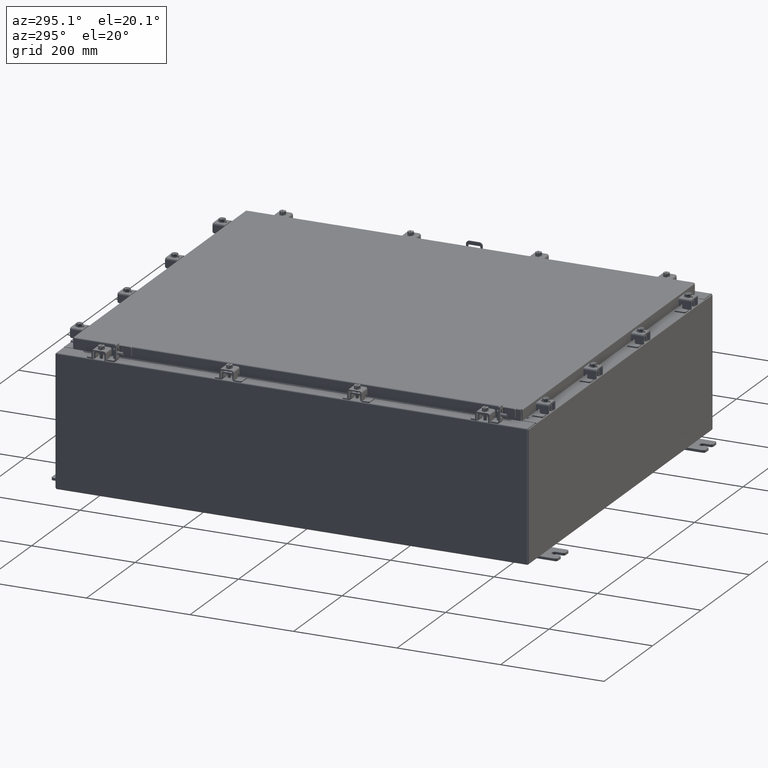
[diagram: clean part render]
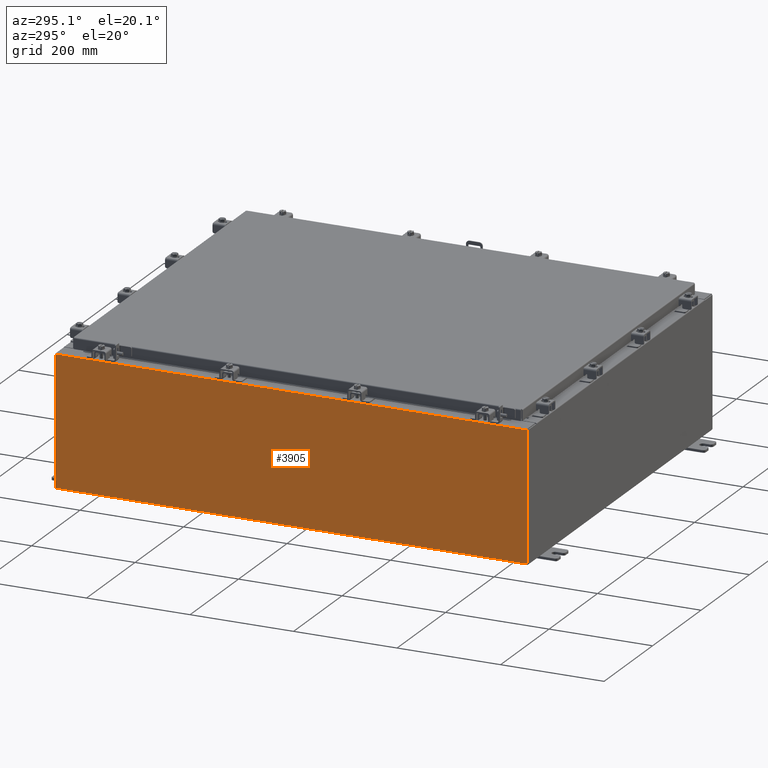
[diagram: same view with one face highlighted and labeled with its STEP entity id]
A machine part, auxiliary view. The second image highlights one B-rep face of the part: STEP entity #3905.
In plain terms, the highlighted planar face has unit normal (1, 0, 0).
Its self-contained STEP definition (entity closure, byte-faithful):
#37 = VERTEX_POINT ( 'NONE', #19309 ) ;
#464 = ORIENTED_EDGE ( 'NONE', *, *, #6773, .T. ) ;
#509 = LINE ( 'NONE', #2527, #13833 ) ;
#1402 = VECTOR ( 'NONE', #5869, 39.37007874015748100 ) ;
#2527 = CARTESIAN_POINT ( 'NONE',  ( -15.00000000000000400, 17.92530000000000000, 0.01299999999999984700 ) ) ;
#3388 = VECTOR ( 'NONE', #16545, 39.37007874015748100 ) ;
#3869 = VERTEX_POINT ( 'NONE', #16182 ) ;
#3905 = ADVANCED_FACE ( 'NONE', ( #12391 ), #12611, .F. ) ;
#4137 = CARTESIAN_POINT ( 'NONE',  ( -15.00000000000003700, -17.92530000000000000, 9.837599999999998300 ) ) ;
#4248 = CARTESIAN_POINT ( 'NONE',  ( -15.00000000000003700, -17.92530000000000000, 9.837599999999998300 ) ) ;
#4276 = DIRECTION ( 'NONE',  ( -0.0000000000000000000, 1.000000000000000000, -0.0000000000000000000 ) ) ;
#5314 = CARTESIAN_POINT ( 'NONE',  ( -15.00000000000000400, 17.92530000000000000, 0.01299999999999984300 ) ) ;
#5415 = ORIENTED_EDGE ( 'NONE', *, *, #11498, .F. ) ;
#5869 = DIRECTION ( 'NONE',  ( 0.0000000000000000000, 1.000000000000000000, 0.0000000000000000000 ) ) ;
#6577 = LINE ( 'NONE', #11072, #15270 ) ;
#6773 = EDGE_CURVE ( 'NONE', #37, #8850, #6577, .T. ) ;
#7697 = ORIENTED_EDGE ( 'NONE', *, *, #22334, .T. ) ;
#8456 = VERTEX_POINT ( 'NONE', #5314 ) ;
#8850 = VERTEX_POINT ( 'NONE', #4248 ) ;
#10085 = LINE ( 'NONE', #4137, #1402 ) ;
#10274 = DIRECTION ( 'NONE',  ( -3.523082860860888200E-015, 0.0000000000000000000, 1.000000000000000000 ) ) ;
#10661 = EDGE_CURVE ( 'NONE', #8850, #3869, #10085, .T. ) ;
#11072 = CARTESIAN_POINT ( 'NONE',  ( -15.00000000000000400, -17.92530000000000000, -5.310705656892490100E-014 ) ) ;
#11498 = EDGE_CURVE ( 'NONE', #37, #8456, #509, .T. ) ;
#12046 = DIRECTION ( 'NONE',  ( 3.523082860860887800E-015, 0.0000000000000000000, -1.000000000000000000 ) ) ;
#12309 = DIRECTION ( 'NONE',  ( 1.000000000000000000, 0.0000000000000000000, 3.523082860860887800E-015 ) ) ;
#12391 = FACE_OUTER_BOUND ( 'NONE', #19821, .T. ) ;
#12611 = PLANE ( 'NONE',  #19762 ) ;
#12623 = LINE ( 'NONE', #14797, #3388 ) ;
#12821 = CARTESIAN_POINT ( 'NONE',  ( -15.00000000000000400, 0.0000000000000000000, -5.310705656892490100E-014 ) ) ;
#13833 = VECTOR ( 'NONE', #4276, 39.37007874015748100 ) ;
#14797 = CARTESIAN_POINT ( 'NONE',  ( -15.00000000000000400, 17.92530000000000000, -5.310705656892490100E-014 ) ) ;
#15270 = VECTOR ( 'NONE', #10274, 39.37007874015748100 ) ;
#16182 = CARTESIAN_POINT ( 'NONE',  ( -15.00000000000003700, 17.92530000000000000, 9.837599999999998300 ) ) ;
#16545 = DIRECTION ( 'NONE',  ( 3.523082860860888200E-015, 0.0000000000000000000, -1.000000000000000000 ) ) ;
#17472 = ORIENTED_EDGE ( 'NONE', *, *, #10661, .T. ) ;
#19309 = CARTESIAN_POINT ( 'NONE',  ( -15.00000000000000400, -17.92530000000000000, 0.01299999999999984700 ) ) ;
#19762 = AXIS2_PLACEMENT_3D ( 'NONE', #12821, #12309, #12046 ) ;
#19821 = EDGE_LOOP ( 'NONE', ( #17472, #7697, #5415, #464 ) ) ;
#22334 = EDGE_CURVE ( 'NONE', #3869, #8456, #12623, .T. ) ;